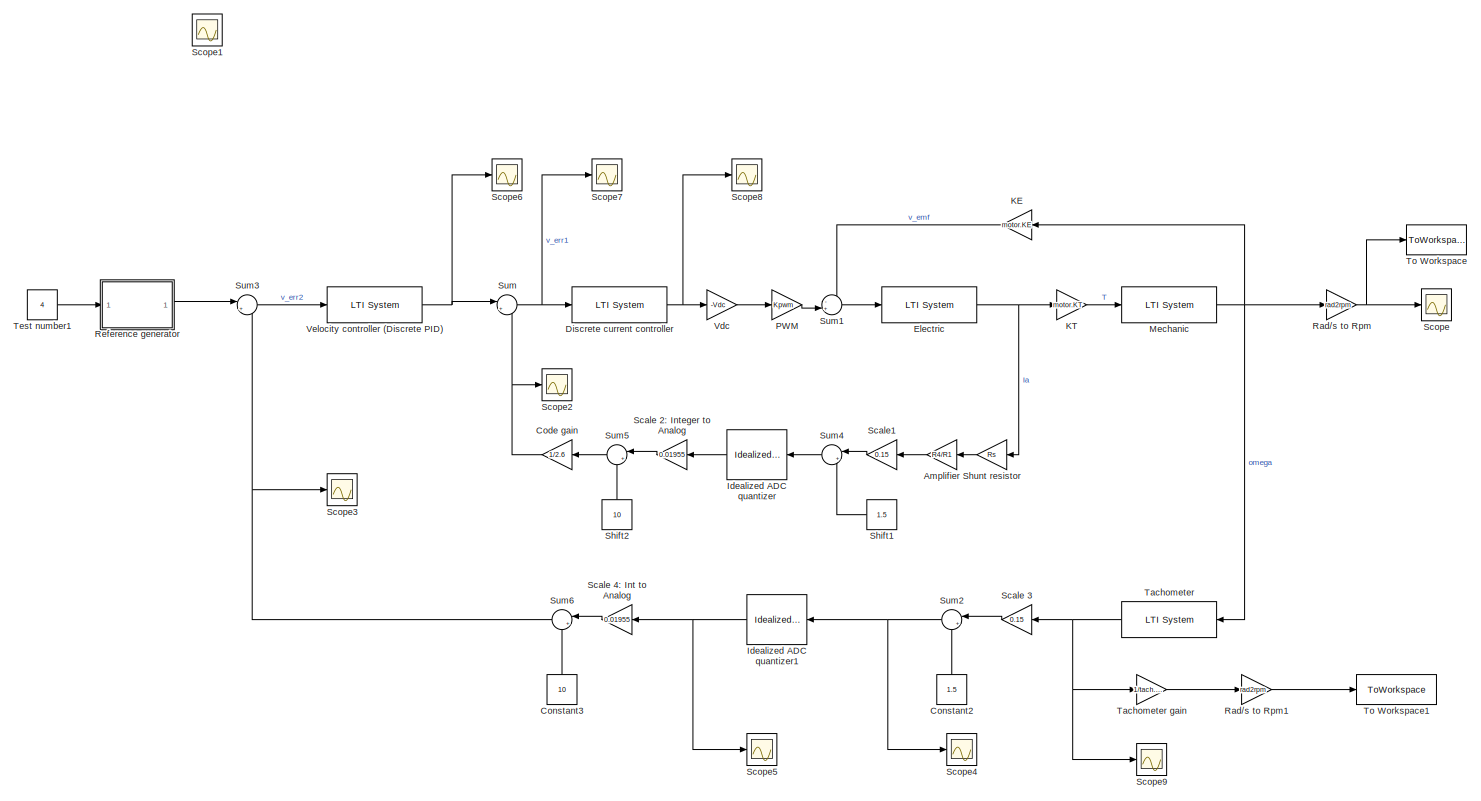
[diagram: root canvas - part 1/1, most of the canvas]
MODEL slx_352b7c4bd81b
KIND model
BLOCK [Gain]  Amplifier 
  Gain = R4/R1
  OutDataTypeStr = Inherit: Inherit via internal rule
  ParamDataTypeStr = Inherit: Inherit via internal rule
  SaturateOnIntegerOverflow = off
BLOCK [Gain]  Code gain
  Gain = 1/2.6
  OutDataTypeStr = Inherit: Inherit via internal rule
  ParamDataTypeStr = Inherit: Inherit via internal rule
  SaturateOnIntegerOverflow = off
BLOCK [Gain]  Scale 3
  Gain = 0.15
  OutDataTypeStr = Inherit: Inherit via internal rule
  ParamDataTypeStr = Inherit: Inherit via internal rule
  SaturateOnIntegerOverflow = off
BLOCK [Gain]  Scale 4: Int to Analog
  Gain = 0.01955
  OutDataTypeStr = Inherit: Inherit via internal rule
  ParamDataTypeStr = Inherit: Inherit via internal rule
  SaturateOnIntegerOverflow = off
BLOCK [Gain]  Scale1
  Gain = 0.15
  OutDataTypeStr = Inherit: Inherit via internal rule
  ParamDataTypeStr = Inherit: Inherit via internal rule
  SaturateOnIntegerOverflow = off
BLOCK [Gain]  Shunt resistor
  Gain = Rs
  OutDataTypeStr = Inherit: Inherit via internal rule
  ParamDataTypeStr = Inherit: Inherit via internal rule
  SaturateOnIntegerOverflow = off
BLOCK [Constant] Constant2
  Value = 1.5
BLOCK [Constant] Constant3
  Value = 10
BLOCK [Reference] Discrete current controller  REF=cstblocks/LTI System
  IC = []
  Ports = [1, 1]
  SourceBlock = cstblocks/LTI System
  SourceType = LTI Block
  sys = -C1_dig
BLOCK [Reference] Electric  REF=cstblocks/LTI System
  IC = []
  Ports = [1, 1]
  SourceBlock = cstblocks/LTI System
  SourceType = LTI Block
  sys = G1
BLOCK [Reference] Idealized ADC quantizer  REF=simulink_extras/Additional
Discrete/Idealized ADC quantizer
  AttributesFormatString = (settings: %<NumberOfConverterBits>-bit converter\nVmin: %<Vmin>, Vmax: %<Vmax>)
  NumberOfConverterBits = 10
  OutputDataType = uint16
  OutputNegativeValues = on
  Ports = [1, 1]
  SourceBlock = simulink_extras/Additional\nDiscrete/Idealized ADC quantizer
  SourceType = IdealADC
  Vmax = 3
  Vmin = 0
BLOCK [Reference] Idealized ADC quantizer1  REF=simulink_extras/Additional
Discrete/Idealized ADC quantizer
  AttributesFormatString = (settings: %<NumberOfConverterBits>-bit converter\nVmin: %<Vmin>, Vmax: %<Vmax>)
  NumberOfConverterBits = 10
  OutputDataType = uint16
  OutputNegativeValues = on
  Ports = [1, 1]
  SourceBlock = simulink_extras/Additional\nDiscrete/Idealized ADC quantizer
  SourceType = IdealADC
  Vmax = 3
  Vmin = 0
BLOCK [Gain] KE
  Gain = motor.KE
  OutDataTypeStr = Inherit: Inherit via internal rule
  ParamDataTypeStr = Inherit: Inherit via internal rule
  SaturateOnIntegerOverflow = off
BLOCK [Gain] KT
  Gain = motor.KT
  OutDataTypeStr = Inherit: Inherit via internal rule
  ParamDataTypeStr = Inherit: Inherit via internal rule
  SaturateOnIntegerOverflow = off
BLOCK [Reference] Mechanic  REF=cstblocks/LTI System
  IC = []
  Ports = [1, 1]
  SourceBlock = cstblocks/LTI System
  SourceType = LTI Block
  sys = G2
BLOCK [Gain] PWM
  Gain = Kpwm
  OutDataTypeStr = Inherit: Inherit via internal rule
  ParamDataTypeStr = Inherit: Inherit via internal rule
  SaturateOnIntegerOverflow = off
BLOCK [Gain] Rad//s to Rpm
  Gain = rad2rpm
  OutDataTypeStr = Inherit: Inherit via internal rule
  ParamDataTypeStr = Inherit: Inherit via internal rule
  SaturateOnIntegerOverflow = off
BLOCK [Gain] Rad//s to Rpm1
  Gain = rad2rpm
  OutDataTypeStr = Inherit: Inherit via internal rule
  ParamDataTypeStr = Inherit: Inherit via internal rule
  SaturateOnIntegerOverflow = off
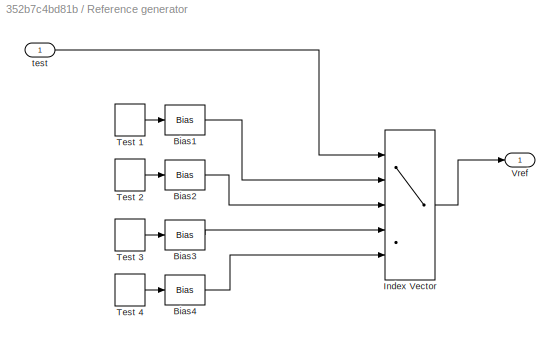
BLOCK [SubSystem] Reference generator
  Ports = [1, 1]
  RequestExecContextInheritance = off
BLOCK [Bias] Reference generator/Bias1
  Bias = 3
  SaturateOnIntegerOverflow = off
BLOCK [Bias] Reference generator/Bias2
  Bias = 1
  SaturateOnIntegerOverflow = off
BLOCK [Bias] Reference generator/Bias3
  SaturateOnIntegerOverflow = off
BLOCK [Bias] Reference generator/Bias4
  Bias = -1
  SaturateOnIntegerOverflow = off
BLOCK [MultiPortSwitch] Reference generator/Index Vector
  InputSameDT = off
  Inputs = 4
  Ports = [5, 1]
  SaturateOnIntegerOverflow = off
BLOCK [DiscretePulseGenerator] Reference generator/Test 1
  Amplitude = 2
  Period = 5
  PhaseDelay = 1
  Ports = [0, 1]
  PulseType = Time based
  PulseWidth = 50
BLOCK [DiscretePulseGenerator] Reference generator/Test 2
  Amplitude = 6
  Period = 5
  PhaseDelay = 1
  Ports = [0, 1]
  PulseType = Time based
  PulseWidth = 50
BLOCK [DiscretePulseGenerator] Reference generator/Test 3
  Amplitude = 8
  Period = 5
  PhaseDelay = 1
  Ports = [0, 1]
  PulseType = Time based
  PulseWidth = 50
BLOCK [DiscretePulseGenerator] Reference generator/Test 4
  Amplitude = 2
  Period = 5
  PhaseDelay = 1
  Ports = [0, 1]
  PulseType = Time based
  PulseWidth = 50
BLOCK [Outport] Reference generator/Vref
  IconDisplay = Port number
BLOCK [Inport] Reference generator/test
  IconDisplay = Port number
BLOCK [Gain] Scale 2: Integer to Analog
  Gain = 0.01955
  OutDataTypeStr = Inherit: Inherit via internal rule
  ParamDataTypeStr = Inherit: Inherit via internal rule
  SaturateOnIntegerOverflow = off
BLOCK [Scope] Scope
  Floating = off
  LimitDataPoints = off
  NumInputPorts = 1
  Ports = [1]
  ShowLegends = off
  YMax = 9000
  YMin = -1000
  ZoomMode = xonly
BLOCK [Scope] Scope1
  DataFormat = StructureWithTime
  Floating = off
  IOType = viewer
  LimitDataPoints = off
  NumInputPorts = 1
  Ports = []
  SampleTime = 0
  SaveName = ScopeData1
  ShowLegends = off
BLOCK [Scope] Scope2
  Floating = off
  NumInputPorts = 1
  Ports = [1]
  SaveName = ScopeData2
  ShowLegends = off
  YMax = -3.75
  YMin = -3.95
BLOCK [Scope] Scope3
  Decimation = 10
  Floating = off
  LimitDataPoints = off
  NumInputPorts = 1
  Ports = [1]
  SaveName = ScopeData3
  ShowLegends = off
  YMax = -3.75
  YMin = -3.95
BLOCK [Scope] Scope4
  Decimation = 10
  Floating = off
  LimitDataPoints = off
  NumInputPorts = 1
  Ports = [1]
  SaveName = ScopeData4
  ShowLegends = off
  TimeRange = 15
  YMax = -3.75
  YMin = -3.95
  ZoomMode = xonly
BLOCK [Scope] Scope5
  Decimation = 10
  Floating = off
  LimitDataPoints = off
  NumInputPorts = 1
  Ports = [1]
  SaveName = ScopeData5
  ShowLegends = off
  YMax = 1100
  YMin = 500
  ZoomMode = yonly
BLOCK [Scope] Scope6
  Floating = off
  NumInputPorts = 1
  Ports = [1]
  SaveName = ScopeData6
  ShowLegends = off
  YMax = -3.75
  YMin = -3.95
BLOCK [Scope] Scope7
  Decimation = 10
  Floating = off
  LimitDataPoints = off
  NumInputPorts = 1
  Ports = [1]
  SaveName = ScopeData7
  ShowLegends = off
  YMax = -3.75
  YMin = -3.95
BLOCK [Scope] Scope8
  Decimation = 10
  Floating = off
  LimitDataPoints = off
  NumInputPorts = 1
  Ports = [1]
  SaveName = ScopeData8
  ShowLegends = off
  YMax = -3.75
  YMin = -3.95
  ZoomMode = xonly
BLOCK [Scope] Scope9
  Decimation = 10
  Floating = off
  LimitDataPoints = off
  NumInputPorts = 1
  Ports = [1]
  SaveName = ScopeData9
  ShowLegends = off
  YMax = 35
  ZoomMode = xonly
BLOCK [Constant] Shift1
  Value = 1.5
BLOCK [Constant] Shift2
  Value = 10
BLOCK [Sum] Sum
  IconShape = round
  InputSameDT = off
  Inputs = |+-
  OutDataTypeStr = Inherit: Inherit via internal rule
  Ports = [2, 1]
  SaturateOnIntegerOverflow = off
BLOCK [Sum] Sum1
  IconShape = round
  InputSameDT = off
  Inputs = -+|
  OutDataTypeStr = Inherit: Inherit via internal rule
  Ports = [2, 1]
  SaturateOnIntegerOverflow = off
BLOCK [Sum] Sum2
  IconShape = round
  InputSameDT = off
  Inputs = |++
  OutDataTypeStr = Inherit: Inherit via internal rule
  Ports = [2, 1]
  SaturateOnIntegerOverflow = off
BLOCK [Sum] Sum3
  IconShape = round
  InputSameDT = off
  Inputs = |+-
  OutDataTypeStr = Inherit: Inherit via internal rule
  Ports = [2, 1]
  SaturateOnIntegerOverflow = off
BLOCK [Sum] Sum4
  IconShape = round
  InputSameDT = off
  Inputs = |++
  OutDataTypeStr = Inherit: Inherit via internal rule
  Ports = [2, 1]
  SaturateOnIntegerOverflow = off
BLOCK [Sum] Sum5
  IconShape = round
  InputSameDT = off
  Inputs = |+-
  OutDataTypeStr = Inherit: Inherit via internal rule
  Ports = [2, 1]
  SaturateOnIntegerOverflow = off
BLOCK [Sum] Sum6
  IconShape = round
  InputSameDT = off
  Inputs = |+-
  OutDataTypeStr = Inherit: Inherit via internal rule
  Ports = [2, 1]
  SaturateOnIntegerOverflow = off
BLOCK [Reference] Tachometer  REF=cstblocks/LTI System
  IC = []
  Ports = [1, 1]
  SourceBlock = cstblocks/LTI System
  SourceType = LTI Block
  sys = H2
BLOCK [Gain] Tachometer gain
  Gain = 1/tach.gain
  OutDataTypeStr = Inherit: Inherit via internal rule
  ParamDataTypeStr = Inherit: Inherit via internal rule
  SaturateOnIntegerOverflow = off
BLOCK [Constant] Test number1
  Value = 4
BLOCK [ToWorkspace] To Workspace
  Commented = on
  FixptAsFi = on
  MaxDataPoints = inf
  Ports = [1]
  SampleTime = -1
  Save2DSignal = 3-D array (concatenate along third dimension)
  SaveFormat = Timeseries
  VariableName = speed_lin
BLOCK [ToWorkspace] To Workspace1
  FixptAsFi = on
  MaxDataPoints = inf
  Ports = [1]
  SampleTime = -1
  Save2DSignal = 2-D array (concatenate along first dimension)
  SaveFormat = Timeseries
  VariableName = sim_omegaDL4
BLOCK [Gain] Vdc
  Gain = -Vdc
  OutDataTypeStr = Inherit: Inherit via internal rule
  ParamDataTypeStr = Inherit: Inherit via internal rule
  SaturateOnIntegerOverflow = off
BLOCK [Reference] Velocity controller (Discrete PID)  REF=cstblocks/LTI System
  IC = []
  Ports = [1, 1]
  SourceBlock = cstblocks/LTI System
  SourceType = LTI Block
  sys = C2_dig
LINE  Amplifier :1 ->  Scale1:1
NET  Code gain:1 -> Scope2:1, Sum:2
LINE  Scale 3:1 -> Sum2:1
LINE  Scale 4: Int to Analog:1 -> Sum6:1
LINE  Scale1:1 -> Sum4:1
LINE  Shunt resistor:1 ->  Amplifier :1
LINE Constant2:1 -> Sum2:2
LINE Constant3:1 -> Sum6:2
NET Discrete current controller:1 -> Scope8:1, Vdc:1
NET Electric:1 ->  Shunt resistor:1, KT:1
NET Idealized ADC quantizer1:1 ->  Scale 4: Int to Analog:1, Scope5:1
LINE Idealized ADC quantizer:1 -> Scale 2: Integer to Analog:1
LINE KE:1 -> Sum1:1
LINE KT:1 -> Mechanic:1
NET Mechanic:1 -> KE:1, Rad//s to Rpm:1, Tachometer:1
LINE PWM:1 -> Sum1:2
LINE Rad//s to Rpm1:1 -> To Workspace1:1
NET Rad//s to Rpm:1 -> Scope:1, To Workspace:1
LINE Reference generator/Bias1:1 -> Reference generator/Index Vector:2
LINE Reference generator/Bias2:1 -> Reference generator/Index Vector:3
LINE Reference generator/Bias3:1 -> Reference generator/Index Vector:4
LINE Reference generator/Bias4:1 -> Reference generator/Index Vector:5
LINE Reference generator/Index Vector:1 -> Reference generator/Vref:1
LINE Reference generator/Test 1:1 -> Reference generator/Bias1:1
LINE Reference generator/Test 2:1 -> Reference generator/Bias2:1
LINE Reference generator/Test 3:1 -> Reference generator/Bias3:1
LINE Reference generator/Test 4:1 -> Reference generator/Bias4:1
LINE Reference generator/test:1 -> Reference generator/Index Vector:1
LINE Reference generator:1 -> Sum3:1
LINE Scale 2: Integer to Analog:1 -> Sum5:1
LINE Shift1:1 -> Sum4:2
LINE Shift2:1 -> Sum5:2
LINE Sum1:1 -> Electric:1
NET Sum2:1 -> Idealized ADC quantizer1:1, Scope4:1
LINE Sum3:1 -> Velocity controller (Discrete PID):1
LINE Sum4:1 -> Idealized ADC quantizer:1
LINE Sum5:1 ->  Code gain:1
NET Sum6:1 -> Scope3:1, Sum3:2
NET Sum:1 -> Discrete current controller:1, Scope7:1
LINE Tachometer gain:1 -> Rad//s to Rpm1:1
NET Tachometer:1 ->  Scale 3:1, Scope9:1, Tachometer gain:1
LINE Test number1:1 -> Reference generator:1
LINE Vdc:1 -> PWM:1
NET Velocity controller (Discrete PID):1 -> Scope6:1, Sum:1
note: NET lines group one-source signal fan-out (src -> all destinations, sorted); 1:1 wires keep LINE
